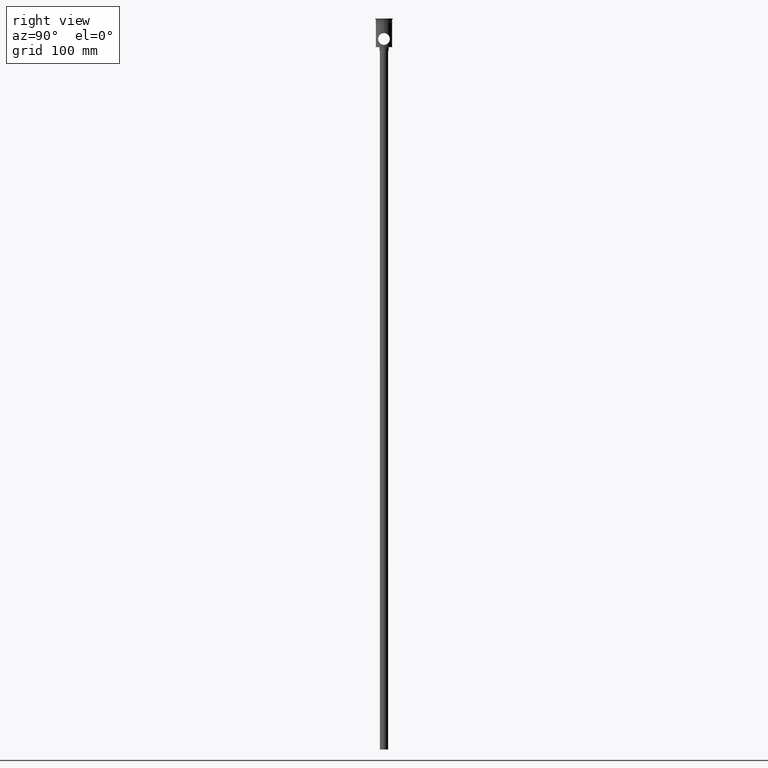
[diagram: clean part render]
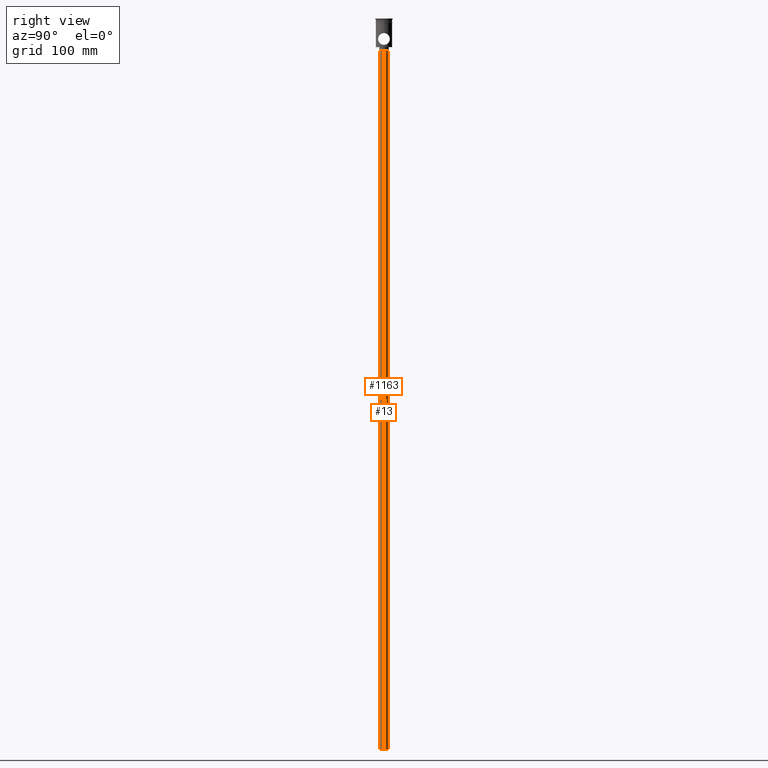
[diagram: same view with one multi-face feature highlighted, each face labeled with its STEP entity id]
A machine part, right view. The highlighted faces form ONE feature: a constant-radius fillet chain: 2 tangent blend faces with common blend radius 3.5 mm. The faces share edges in the B-rep.
Their STEP definitions:
[1] entity #13 (Cylinder):
#13 = ADVANCED_FACE ( 'NONE', ( #686 ), #1257, .T. ) ;
#72 = CARTESIAN_POINT ( 'NONE',  ( 3.500000000000000444, 0.000000000000000000, -624.5000000000000000 ) ) ;
#108 = CARTESIAN_POINT ( 'NONE',  ( 3.500000000000000444, 0.000000000000000000, -624.5000000000000000 ) ) ;
#195 = VERTEX_POINT ( 'NONE', #108 ) ;
#218 = EDGE_CURVE ( 'NONE', #1212, #490, #885, .T. ) ;
#282 = ORIENTED_EDGE ( 'NONE', *, *, #1089, .F. ) ;
#321 = DIRECTION ( 'NONE',  ( 0.000000000000000000, 0.000000000000000000, -1.000000000000000000 ) ) ;
#466 = DIRECTION ( 'NONE',  ( -1.000000000000000000, 0.000000000000000000, 0.000000000000000000 ) ) ;
#473 = DIRECTION ( 'NONE',  ( 0.000000000000000000, 0.000000000000000000, -1.000000000000000000 ) ) ;
#482 = CARTESIAN_POINT ( 'NONE',  ( 0.000000000000000000, 0.000000000000000000, -27.50000000000000000 ) ) ;
#490 = VERTEX_POINT ( 'NONE', #978 ) ;
#531 = ORIENTED_EDGE ( 'NONE', *, *, #1139, .T. ) ;
#537 = ORIENTED_EDGE ( 'NONE', *, *, #218, .T. ) ;
#538 = DIRECTION ( 'NONE',  ( -0.000000000000000000, -0.000000000000000000, 1.000000000000000000 ) ) ;
#585 = CARTESIAN_POINT ( 'NONE',  ( 3.500000000000000444, 0.000000000000000000, -27.50000000000000000 ) ) ;
#650 = LINE ( 'NONE', #72, #1467 ) ;
#661 = CARTESIAN_POINT ( 'NONE',  ( -3.500000000000000444, 4.286263797015737088E-16, -624.5000000000000000 ) ) ;
#669 = EDGE_CURVE ( 'NONE', #1212, #195, #722, .T. ) ;
#677 = VECTOR ( 'NONE', #1356, 1000.000000000000000 ) ;
#686 = FACE_OUTER_BOUND ( 'NONE', #1485, .T. ) ;
#693 = CARTESIAN_POINT ( 'NONE',  ( 0.000000000000000000, 0.000000000000000000, -624.5000000000000000 ) ) ;
#722 = CIRCLE ( 'NONE', #866, 3.500000000000000444 ) ;
#815 = VERTEX_POINT ( 'NONE', #585 ) ;
#860 = CARTESIAN_POINT ( 'NONE',  ( -3.500000000000000444, 4.286263797015737088E-16, -624.5000000000000000 ) ) ;
#866 = AXIS2_PLACEMENT_3D ( 'NONE', #1017, #321, #1475 ) ;
#885 = LINE ( 'NONE', #661, #677 ) ;
#920 = DIRECTION ( 'NONE',  ( 1.000000000000000000, 0.000000000000000000, 0.000000000000000000 ) ) ;
#978 = CARTESIAN_POINT ( 'NONE',  ( -3.500000000000000444, 4.286263797015737088E-16, -27.50000000000000000 ) ) ;
#1009 = CIRCLE ( 'NONE', #1326, 3.500000000000000444 ) ;
#1017 = CARTESIAN_POINT ( 'NONE',  ( 0.000000000000000000, 0.000000000000000000, -624.5000000000000000 ) ) ;
#1038 = ORIENTED_EDGE ( 'NONE', *, *, #669, .F. ) ;
#1052 = DIRECTION ( 'NONE',  ( -0.000000000000000000, -0.000000000000000000, 1.000000000000000000 ) ) ;
#1089 = EDGE_CURVE ( 'NONE', #195, #815, #650, .T. ) ;
#1139 = EDGE_CURVE ( 'NONE', #490, #815, #1009, .T. ) ;
#1212 = VERTEX_POINT ( 'NONE', #860 ) ;
#1257 = CYLINDRICAL_SURFACE ( 'NONE', #1283, 3.500000000000000444 ) ;
#1283 = AXIS2_PLACEMENT_3D ( 'NONE', #693, #1052, #920 ) ;
#1326 = AXIS2_PLACEMENT_3D ( 'NONE', #482, #473, #466 ) ;
#1356 = DIRECTION ( 'NONE',  ( -0.000000000000000000, -0.000000000000000000, 1.000000000000000000 ) ) ;
#1467 = VECTOR ( 'NONE', #538, 1000.000000000000000 ) ;
#1475 = DIRECTION ( 'NONE',  ( -1.000000000000000000, 0.000000000000000000, 0.000000000000000000 ) ) ;
#1485 = EDGE_LOOP ( 'NONE', ( #1038, #537, #531, #282 ) ) ;
[2] entity #1163 (Cylinder):
#6 = EDGE_CURVE ( 'NONE', #815, #490, #578, .T. ) ;
#20 = DIRECTION ( 'NONE',  ( 0.000000000000000000, 0.000000000000000000, -1.000000000000000000 ) ) ;
#72 = CARTESIAN_POINT ( 'NONE',  ( 3.500000000000000444, 0.000000000000000000, -624.5000000000000000 ) ) ;
#108 = CARTESIAN_POINT ( 'NONE',  ( 3.500000000000000444, 0.000000000000000000, -624.5000000000000000 ) ) ;
#111 = DIRECTION ( 'NONE',  ( 1.000000000000000000, 0.000000000000000000, 0.000000000000000000 ) ) ;
#131 = DIRECTION ( 'NONE',  ( 0.000000000000000000, 0.000000000000000000, -1.000000000000000000 ) ) ;
#141 = DIRECTION ( 'NONE',  ( -0.000000000000000000, -0.000000000000000000, 1.000000000000000000 ) ) ;
#143 = AXIS2_PLACEMENT_3D ( 'NONE', #944, #20, #1393 ) ;
#195 = VERTEX_POINT ( 'NONE', #108 ) ;
#218 = EDGE_CURVE ( 'NONE', #1212, #490, #885, .T. ) ;
#240 = AXIS2_PLACEMENT_3D ( 'NONE', #927, #141, #111 ) ;
#353 = EDGE_CURVE ( 'NONE', #195, #1212, #606, .T. ) ;
#490 = VERTEX_POINT ( 'NONE', #978 ) ;
#538 = DIRECTION ( 'NONE',  ( -0.000000000000000000, -0.000000000000000000, 1.000000000000000000 ) ) ;
#549 = ORIENTED_EDGE ( 'NONE', *, *, #6, .T. ) ;
#578 = CIRCLE ( 'NONE', #143, 3.500000000000000444 ) ;
#585 = CARTESIAN_POINT ( 'NONE',  ( 3.500000000000000444, 0.000000000000000000, -27.50000000000000000 ) ) ;
#590 = CYLINDRICAL_SURFACE ( 'NONE', #240, 3.500000000000000444 ) ;
#593 = DIRECTION ( 'NONE',  ( -1.000000000000000000, 0.000000000000000000, 0.000000000000000000 ) ) ;
#606 = CIRCLE ( 'NONE', #1471, 3.500000000000000444 ) ;
#615 = ORIENTED_EDGE ( 'NONE', *, *, #1089, .T. ) ;
#650 = LINE ( 'NONE', #72, #1467 ) ;
#661 = CARTESIAN_POINT ( 'NONE',  ( -3.500000000000000444, 4.286263797015737088E-16, -624.5000000000000000 ) ) ;
#663 = EDGE_LOOP ( 'NONE', ( #898, #1020, #615, #549 ) ) ;
#677 = VECTOR ( 'NONE', #1356, 1000.000000000000000 ) ;
#707 = CARTESIAN_POINT ( 'NONE',  ( 0.000000000000000000, 0.000000000000000000, -624.5000000000000000 ) ) ;
#815 = VERTEX_POINT ( 'NONE', #585 ) ;
#860 = CARTESIAN_POINT ( 'NONE',  ( -3.500000000000000444, 4.286263797015737088E-16, -624.5000000000000000 ) ) ;
#885 = LINE ( 'NONE', #661, #677 ) ;
#898 = ORIENTED_EDGE ( 'NONE', *, *, #218, .F. ) ;
#927 = CARTESIAN_POINT ( 'NONE',  ( 0.000000000000000000, 0.000000000000000000, -624.5000000000000000 ) ) ;
#944 = CARTESIAN_POINT ( 'NONE',  ( 0.000000000000000000, 0.000000000000000000, -27.50000000000000000 ) ) ;
#978 = CARTESIAN_POINT ( 'NONE',  ( -3.500000000000000444, 4.286263797015737088E-16, -27.50000000000000000 ) ) ;
#1020 = ORIENTED_EDGE ( 'NONE', *, *, #353, .F. ) ;
#1089 = EDGE_CURVE ( 'NONE', #195, #815, #650, .T. ) ;
#1163 = ADVANCED_FACE ( 'NONE', ( #1180 ), #590, .T. ) ;
#1180 = FACE_OUTER_BOUND ( 'NONE', #663, .T. ) ;
#1212 = VERTEX_POINT ( 'NONE', #860 ) ;
#1356 = DIRECTION ( 'NONE',  ( -0.000000000000000000, -0.000000000000000000, 1.000000000000000000 ) ) ;
#1393 = DIRECTION ( 'NONE',  ( -1.000000000000000000, 0.000000000000000000, 0.000000000000000000 ) ) ;
#1467 = VECTOR ( 'NONE', #538, 1000.000000000000000 ) ;
#1471 = AXIS2_PLACEMENT_3D ( 'NONE', #707, #131, #593 ) ;